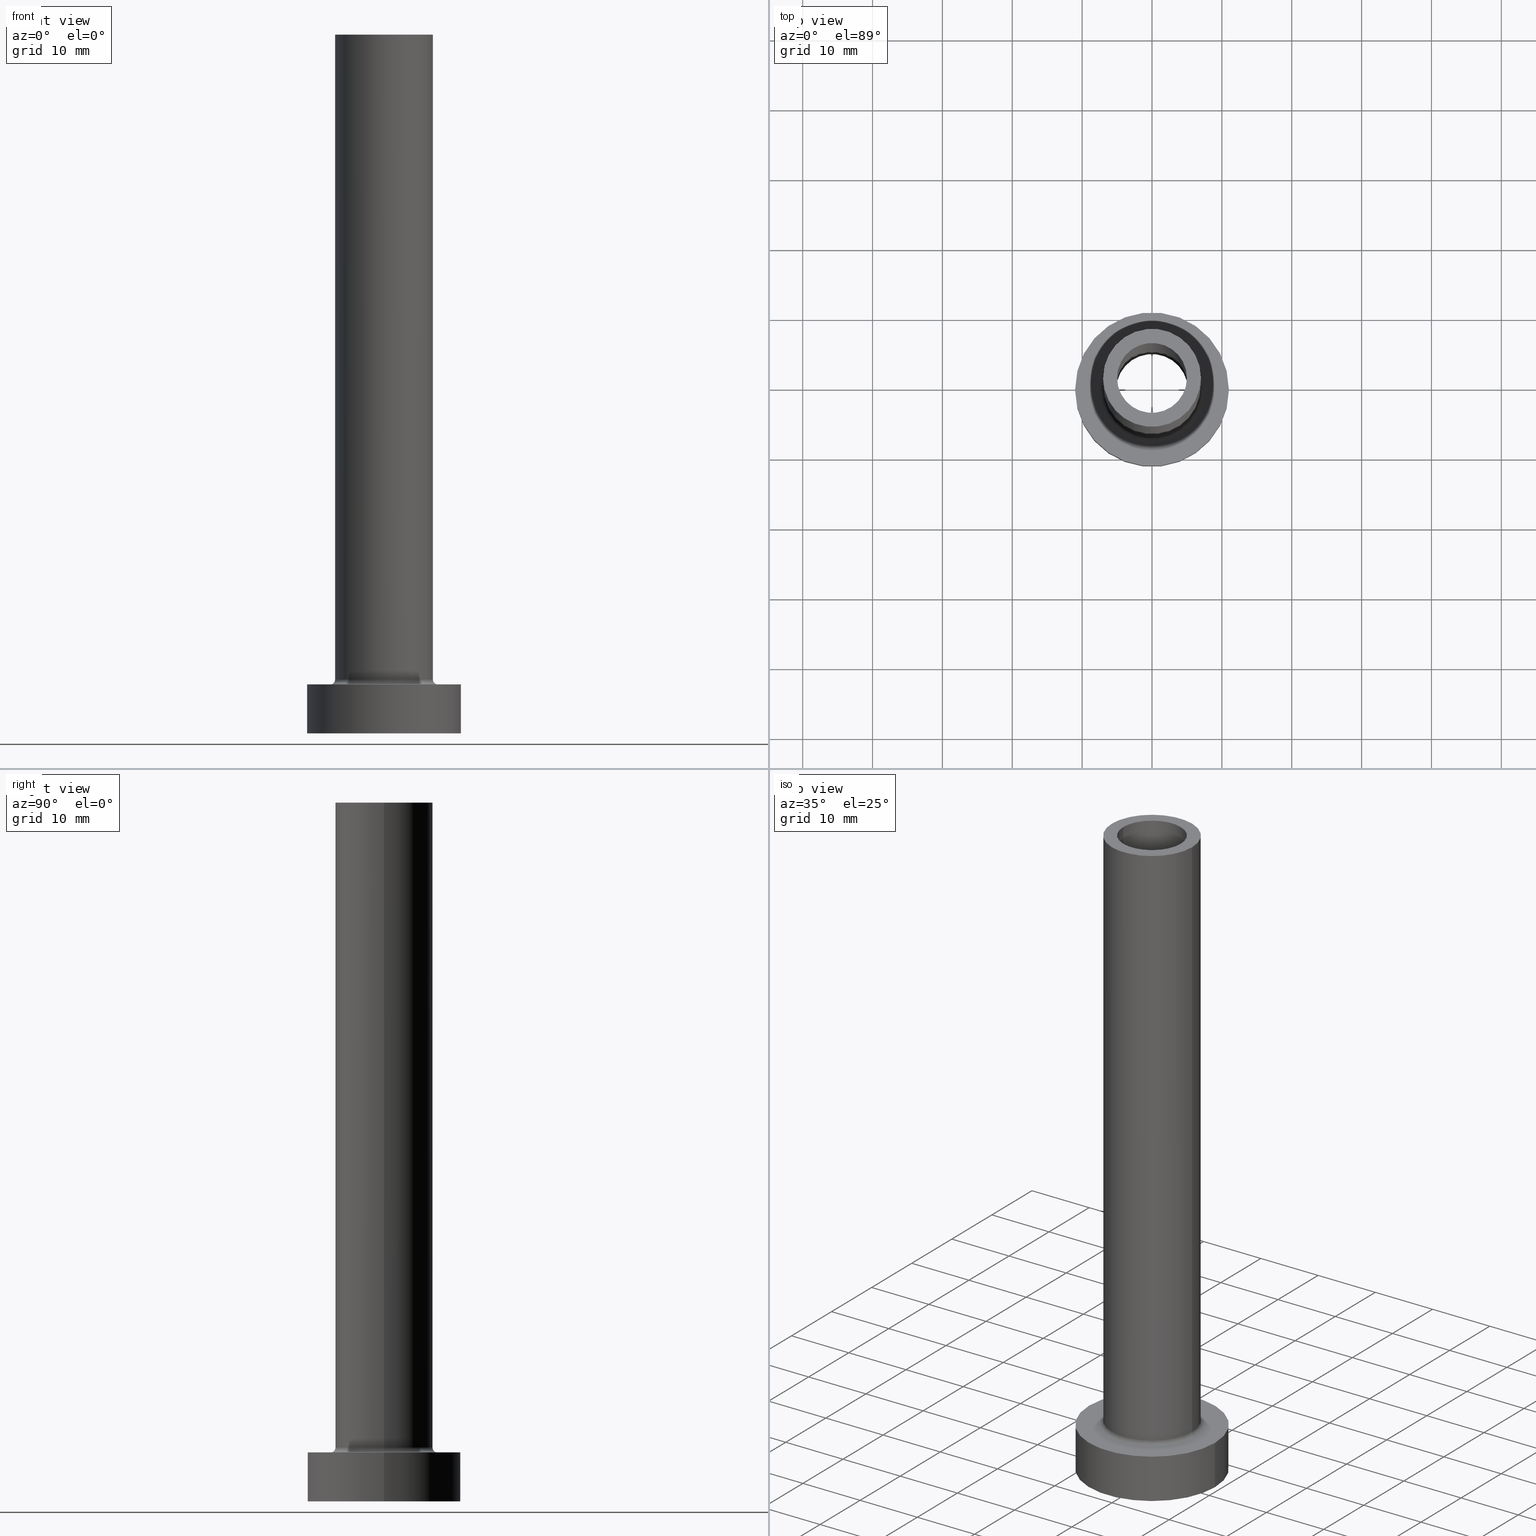
[diagram: canonical four-view strip — front | top / right | iso, engineering-drawing reading convention]
A machine part, canonical four-view strip (front | top / right | iso — engineering-drawing reading convention). The complete STEP part file that produces these views, byte-faithful:
ISO-10303-21;
HEADER;
FILE_DESCRIPTION (( 'STEP AP203' ),
    '1' );
FILE_NAME ('eeec.STEP',
    '2023-02-13T07:44:47',
    ( '' ),
    ( '' ),
    'SwSTEP 2.0',
    'SolidWorks 2019',
    '' );
FILE_SCHEMA (( 'CONFIG_CONTROL_DESIGN' ));
ENDSEC;

DATA;
#1 = DATE_AND_TIME ( #151, #394 ) ;
#2 = ORIENTED_EDGE ( 'NONE', *, *, #4, .T. ) ;
#3 = CARTESIAN_POINT ( 'NONE',  ( 0.000000000000000000, 0.000000000000000000, 0.000000000000000000 ) ) ;
#4 = EDGE_CURVE ( 'NONE', #427, #450, #444, .T. ) ;
#5 = EDGE_LOOP ( 'NONE', ( #326, #276, #83, #334 ) ) ;
#6 = AXIS2_PLACEMENT_3D ( 'NONE', #219, #72, #428 ) ;
#7 = ORIENTED_EDGE ( 'NONE', *, *, #222, .F. ) ;
#8 = CC_DESIGN_SECURITY_CLASSIFICATION ( #225, ( #303 ) ) ;
#9 = CARTESIAN_POINT ( 'NONE',  ( 0.000000000000000000, 0.000000000000000000, 100.0000000000000000 ) ) ;
#10 = EDGE_LOOP ( 'NONE', ( #153, #193, #87, #99 ) ) ;
#11 = ADVANCED_FACE ( 'NONE', ( #342 ), #408, .T. ) ;
#12 = DESIGN_CONTEXT ( 'detailed design', #199, 'design' ) ;
#13 = PERSON_AND_ORGANIZATION ( #282, #139 ) ;
#14 = CARTESIAN_POINT ( 'NONE',  ( 0.000000000000000000, 0.000000000000000000, 55.00000000000000711 ) ) ;
#15 = DIRECTION ( 'NONE',  ( 0.000000000000000000, 0.000000000000000000, -1.000000000000000000 ) ) ;
#16 = CLOSED_SHELL ( 'NONE', ( #365, #281, #347, #22, #173, #11, #186, #272, #252, #338, #306, #157, #341, #96 ) ) ;
#17 = AXIS2_PLACEMENT_3D ( 'NONE', #405, #203, #129 ) ;
#18 = APPROVAL_STATUS ( 'not_yet_approved' ) ;
#19 = DIRECTION ( 'NONE',  ( 1.000000000000000000, 0.000000000000000000, 0.000000000000000000 ) ) ;
#20 = FACE_OUTER_BOUND ( 'NONE', #74, .T. ) ;
#21 = DIRECTION ( 'NONE',  ( -0.000000000000000000, -0.000000000000000000, -1.000000000000000000 ) ) ;
#22 = ADVANCED_FACE ( 'NONE', ( #205 ), #346, .T. ) ;
#23 = DIRECTION ( 'NONE',  ( 0.000000000000000000, 0.000000000000000000, 1.000000000000000000 ) ) ;
#24 = CARTESIAN_POINT ( 'NONE',  ( 0.000000000000000000, 0.000000000000000000, 0.000000000000000000 ) ) ;
#25 = CARTESIAN_POINT ( 'NONE',  ( 7.000000000000000888, 8.572527594031472204E-16, 100.0000000000000000 ) ) ;
#26 = CARTESIAN_POINT ( 'NONE',  ( 0.000000000000000000, 0.000000000000000000, 55.00000000000000711 ) ) ;
#27 = AXIS2_PLACEMENT_3D ( 'NONE', #91, #236, #455 ) ;
#28 = DIRECTION ( 'NONE',  ( -1.000000000000000000, 0.000000000000000000, 0.000000000000000000 ) ) ;
#29 = EDGE_CURVE ( 'NONE', #427, #305, #161, .T. ) ;
#30 = CARTESIAN_POINT ( 'NONE',  ( 0.000000000000000000, 0.000000000000000000, 7.000000000000000000 ) ) ;
#31 = FACE_OUTER_BOUND ( 'NONE', #251, .T. ) ;
#32 = ORIENTED_EDGE ( 'NONE', *, *, #423, .F. ) ;
#33 = TOROIDAL_SURFACE ( 'NONE', #54, 7.700000000000001066, 0.6999999999999999556 ) ;
#34 = AXIS2_PLACEMENT_3D ( 'NONE', #73, #261, #398 ) ;
#35 = DIRECTION ( 'NONE',  ( 0.000000000000000000, 0.000000000000000000, 1.000000000000000000 ) ) ;
#36 = APPROVAL_STATUS ( 'not_yet_approved' ) ;
#37 = VERTEX_POINT ( 'NONE', #231 ) ;
#38 = DIRECTION ( 'NONE',  ( -0.000000000000000000, -0.000000000000000000, -1.000000000000000000 ) ) ;
#39 = AXIS2_PLACEMENT_3D ( 'NONE', #204, #345, #94 ) ;
#40 = ORIENTED_EDGE ( 'NONE', *, *, #61, .F. ) ;
#41 = APPLICATION_CONTEXT ( 'configuration controlled 3d designs of mechanical parts and assemblies' ) ;
#42 = VERTEX_POINT ( 'NONE', #58 ) ;
#43 = DIRECTION ( 'NONE',  ( -1.000000000000000000, 0.000000000000000000, 0.000000000000000000 ) ) ;
#44 = AXIS2_PLACEMENT_3D ( 'NONE', #9, #361, #43 ) ;
#45 = EDGE_LOOP ( 'NONE', ( #40, #422 ) ) ;
#46 = AXIS2_PLACEMENT_3D ( 'NONE', #176, #442, #19 ) ;
#47 = EDGE_CURVE ( 'NONE', #259, #362, #448, .T. ) ;
#48 = ORIENTED_EDGE ( 'NONE', *, *, #128, .F. ) ;
#49 = FACE_OUTER_BOUND ( 'NONE', #10, .T. ) ;
#50 = PERSON_AND_ORGANIZATION_ROLE ( 'classification_officer' ) ;
#51 = VERTEX_POINT ( 'NONE', #90 ) ;
#52 = CARTESIAN_POINT ( 'NONE',  ( 0.000000000000000000, 0.000000000000000000, 7.000000000000000000 ) ) ;
#53 = CARTESIAN_POINT ( 'NONE',  ( -5.150000000000001243, 0.000000000000000000, 0.000000000000000000 ) ) ;
#54 = AXIS2_PLACEMENT_3D ( 'NONE', #62, #23, #348 ) ;
#55 = APPROVAL ( #227, 'NEUR�EN�' ) ;
#56 = DIRECTION ( 'NONE',  ( 1.000000000000000000, 0.000000000000000000, 0.000000000000000000 ) ) ;
#57 = CYLINDRICAL_SURFACE ( 'NONE', #440, 5.150000000000001243 ) ;
#58 = CARTESIAN_POINT ( 'NONE',  ( -7.000000000000000888, 0.000000000000000000, 7.699999999999998401 ) ) ;
#59 = CARTESIAN_POINT ( 'NONE',  ( 11.00000000000000000, 1.347111479062088405E-15, 7.000000000000000000 ) ) ;
#60 = DIRECTION ( 'NONE',  ( -0.000000000000000000, -0.000000000000000000, -1.000000000000000000 ) ) ;
#61 = EDGE_CURVE ( 'NONE', #209, #375, #258, .T. ) ;
#62 = CARTESIAN_POINT ( 'NONE',  ( 0.000000000000000000, 0.000000000000000000, 7.699999999999998401 ) ) ;
#63 = CIRCLE ( 'NONE', #430, 5.150000000000001243 ) ;
#64 = APPROVAL_PERSON_ORGANIZATION ( #194, #55, #304 ) ;
#65 = ORIENTED_EDGE ( 'NONE', *, *, #312, .T. ) ;
#66 = LINE ( 'NONE', #25, #295 ) ;
#67 = VERTEX_POINT ( 'NONE', #319 ) ;
#68 = DIRECTION ( 'NONE',  ( 0.000000000000000000, 0.000000000000000000, 1.000000000000000000 ) ) ;
#69 = EDGE_CURVE ( 'NONE', #42, #460, #101, .T. ) ;
#70 =( NAMED_UNIT ( * ) PLANE_ANGLE_UNIT ( ) SI_UNIT ( $, .RADIAN. ) );
#71 = EDGE_LOOP ( 'NONE', ( #280, #328, #387, #48 ) ) ;
#72 = DIRECTION ( 'NONE',  ( 0.000000000000000000, -1.000000000000000000, 0.000000000000000000 ) ) ;
#73 = CARTESIAN_POINT ( 'NONE',  ( 0.000000000000000000, 0.000000000000000000, 0.000000000000000000 ) ) ;
#74 = EDGE_LOOP ( 'NONE', ( #80, #217, #352, #253 ) ) ;
#75 = CARTESIAN_POINT ( 'NONE',  ( 0.000000000000000000, 0.000000000000000000, 0.000000000000000000 ) ) ;
#76 = ORIENTED_EDGE ( 'NONE', *, *, #318, .F. ) ;
#77 = CC_DESIGN_PERSON_AND_ORGANIZATION_ASSIGNMENT ( #266, #223, ( #303 ) ) ;
#78 = VECTOR ( 'NONE', #289, 1000.000000000000000 ) ;
#79 = ORIENTED_EDGE ( 'NONE', *, *, #246, .T. ) ;
#80 = ORIENTED_EDGE ( 'NONE', *, *, #445, .F. ) ;
#81 = PRODUCT ( 'eeec', 'eeec', '', ( #355 ) ) ;
#82 = AXIS2_PLACEMENT_3D ( 'NONE', #350, #171, #202 ) ;
#83 = ORIENTED_EDGE ( 'NONE', *, *, #226, .T. ) ;
#84 = AXIS2_PLACEMENT_3D ( 'NONE', #409, #88, #232 ) ;
#85 = DIRECTION ( 'NONE',  ( 1.000000000000000000, 0.000000000000000000, -0.000000000000000000 ) ) ;
#86 = CYLINDRICAL_SURFACE ( 'NONE', #117, 5.000000000000000000 ) ;
#87 = ORIENTED_EDGE ( 'NONE', *, *, #135, .F. ) ;
#88 = DIRECTION ( 'NONE',  ( 0.000000000000000000, 0.000000000000000000, 1.000000000000000000 ) ) ;
#89 = CC_DESIGN_PERSON_AND_ORGANIZATION_ASSIGNMENT ( #13, #363, ( #303 ) ) ;
#90 = CARTESIAN_POINT ( 'NONE',  ( 5.000000000000000000, 6.123233995736765296E-16, 55.00000000000000711 ) ) ;
#91 = CARTESIAN_POINT ( 'NONE',  ( 0.000000000000000000, 0.000000000000000000, 100.0000000000000000 ) ) ;
#92 = PLANE ( 'NONE',  #244 ) ;
#93 = DIRECTION ( 'NONE',  ( -1.000000000000000000, 0.000000000000000000, 0.000000000000000000 ) ) ;
#94 = DIRECTION ( 'NONE',  ( 1.000000000000000000, 0.000000000000000000, 0.000000000000000000 ) ) ;
#95 = DIRECTION ( 'NONE',  ( 0.000000000000000000, 0.000000000000000000, 1.000000000000000000 ) ) ;
#96 = ADVANCED_FACE ( 'NONE', ( #414 ), #377, .F. ) ;
#97 = DIRECTION ( 'NONE',  ( -1.000000000000000000, 0.000000000000000000, 0.000000000000000000 ) ) ;
#98 = CARTESIAN_POINT ( 'NONE',  ( 0.000000000000000000, 0.000000000000000000, 69.56639969244290000 ) ) ;
#99 = ORIENTED_EDGE ( 'NONE', *, *, #237, .F. ) ;
#100 = AXIS2_PLACEMENT_3D ( 'NONE', #170, #278, #314 ) ;
#101 = CIRCLE ( 'NONE', #321, 7.000000000000000888 ) ;
#102 = CYLINDRICAL_SURFACE ( 'NONE', #133, 11.00000000000000000 ) ;
#103 = DIRECTION ( 'NONE',  ( -0.000000000000000000, -0.000000000000000000, -1.000000000000000000 ) ) ;
#104 = ORIENTED_EDGE ( 'NONE', *, *, #128, .T. ) ;
#105 = CARTESIAN_POINT ( 'NONE',  ( 5.150000000000001243, 6.306931015608869596E-16, 69.56639969244290000 ) ) ;
#106 = ORIENTED_EDGE ( 'NONE', *, *, #147, .F. ) ;
#107 = CIRCLE ( 'NONE', #180, 0.7000000000000000666 ) ;
#108 = DATE_AND_TIME ( #388, #403 ) ;
#109 = PERSON_AND_ORGANIZATION_ROLE ( 'design_owner' ) ;
#110 = ORIENTED_EDGE ( 'NONE', *, *, #29, .F. ) ;
#111 = DIRECTION ( 'NONE',  ( 1.000000000000000000, 0.000000000000000000, -0.000000000000000000 ) ) ;
#112 = EDGE_LOOP ( 'NONE', ( #333, #104 ) ) ;
#113 = AXIS2_PLACEMENT_3D ( 'NONE', #177, #254, #296 ) ;
#114 = APPROVAL_DATE_TIME ( #1, #160 ) ;
#115 = AXIS2_PLACEMENT_3D ( 'NONE', #175, #241, #28 ) ;
#116 = AXIS2_PLACEMENT_3D ( 'NONE', #381, #208, #56 ) ;
#117 = AXIS2_PLACEMENT_3D ( 'NONE', #229, #15, #198 ) ;
#118 = EDGE_LOOP ( 'NONE', ( #435, #301 ) ) ;
#119 = VERTEX_POINT ( 'NONE', #201 ) ;
#120 = EDGE_CURVE ( 'NONE', #362, #259, #417, .T. ) ;
#121 = PLANE ( 'NONE',  #285 ) ;
#122 = UNCERTAINTY_MEASURE_WITH_UNIT (LENGTH_MEASURE( 1.000000000000000082E-05 ), #182, 'distance_accuracy_value', 'NONE');
#123 = VECTOR ( 'NONE', #211, 1000.000000000000000 ) ;
#124 = ORIENTED_EDGE ( 'NONE', *, *, #47, .T. ) ;
#125 = DIRECTION ( 'NONE',  ( 1.224646799147353207E-16, 1.000000000000000000, -0.000000000000000000 ) ) ;
#126 = APPROVAL_DATE_TIME ( #310, #454 ) ;
#127 = DIRECTION ( 'NONE',  ( -0.000000000000000000, -0.000000000000000000, -1.000000000000000000 ) ) ;
#128 = EDGE_CURVE ( 'NONE', #220, #37, #432, .T. ) ;
#129 = DIRECTION ( 'NONE',  ( 1.000000000000000000, 0.000000000000000000, -0.000000000000000000 ) ) ;
#130 = DIRECTION ( 'NONE',  ( -0.000000000000000000, -0.000000000000000000, -1.000000000000000000 ) ) ;
#131 = FACE_OUTER_BOUND ( 'NONE', #337, .T. ) ;
#132 = DIRECTION ( 'NONE',  ( -0.000000000000000000, -0.000000000000000000, -1.000000000000000000 ) ) ;
#133 = AXIS2_PLACEMENT_3D ( 'NONE', #142, #38, #357 ) ;
#134 = DIRECTION ( 'NONE',  ( 0.000000000000000000, 0.000000000000000000, -1.000000000000000000 ) ) ;
#135 = EDGE_CURVE ( 'NONE', #37, #220, #200, .T. ) ;
#136 = CARTESIAN_POINT ( 'NONE',  ( 0.000000000000000000, 0.000000000000000000, 100.0000000000000000 ) ) ;
#137 = DIRECTION ( 'NONE',  ( 0.000000000000000000, 0.000000000000000000, 1.000000000000000000 ) ) ;
#138 = DIRECTION ( 'NONE',  ( -0.000000000000000000, -0.000000000000000000, -1.000000000000000000 ) ) ;
#139 = ORGANIZATION ( 'NEUR�EN�', 'NEUR�EN�', '' ) ;
#140 = DIRECTION ( 'NONE',  ( 1.000000000000000000, 0.000000000000000000, 0.000000000000000000 ) ) ;
#141 = CC_DESIGN_PERSON_AND_ORGANIZATION_ASSIGNMENT ( #299, #395, ( #210 ) ) ;
#142 = CARTESIAN_POINT ( 'NONE',  ( 0.000000000000000000, 0.000000000000000000, 7.000000000000000000 ) ) ;
#143 = ORIENTED_EDGE ( 'NONE', *, *, #226, .F. ) ;
#144 = CARTESIAN_POINT ( 'NONE',  ( -7.000000000000000888, 0.000000000000000000, 100.0000000000000000 ) ) ;
#145 = ORIENTED_EDGE ( 'NONE', *, *, #445, .T. ) ;
#146 = CIRCLE ( 'NONE', #6, 0.7000000000000000666 ) ;
#147 = EDGE_CURVE ( 'NONE', #51, #119, #294, .T. ) ;
#148 = CARTESIAN_POINT ( 'NONE',  ( 0.000000000000000000, 0.000000000000000000, 7.000000000000000000 ) ) ;
#149 = CARTESIAN_POINT ( 'NONE',  ( 5.000000000000000000, 6.123233995736765296E-16, 100.0000000000000000 ) ) ;
#150 = ADVANCED_BREP_SHAPE_REPRESENTATION ( 'eeec', ( #265, #34 ), #380 ) ;
#151 = CALENDAR_DATE ( 2023, 13, 2 ) ;
#152 = DIRECTION ( 'NONE',  ( 0.000000000000000000, 0.000000000000000000, 1.000000000000000000 ) ) ;
#153 = ORIENTED_EDGE ( 'NONE', *, *, #69, .F. ) ;
#154 = DATE_TIME_ROLE ( 'creation_date' ) ;
#155 = LOCAL_TIME ( 8, 44, 47.00000000000000000, #166 ) ;
#156 = ORIENTED_EDGE ( 'NONE', *, *, #297, .F. ) ;
#157 = ADVANCED_FACE ( 'NONE', ( #452 ), #416, .F. ) ;
#158 = DIRECTION ( 'NONE',  ( 0.000000000000000000, 0.000000000000000000, 1.000000000000000000 ) ) ;
#159 = DATE_AND_TIME ( #224, #353 ) ;
#160 = APPROVAL ( #36, 'NEUR�EN�' ) ;
#161 = CIRCLE ( 'NONE', #46, 11.00000000000000000 ) ;
#162 = CIRCLE ( 'NONE', #418, 7.000000000000000888 ) ;
#163 = EDGE_LOOP ( 'NONE', ( #307, #221 ) ) ;
#164 = TOROIDAL_SURFACE ( 'NONE', #286, 7.700000000000001066, 0.6999999999999999556 ) ;
#165 = CARTESIAN_POINT ( 'NONE',  ( 7.000000000000000888, 8.572527594031472204E-16, 100.0000000000000000 ) ) ;
#166 = COORDINATED_UNIVERSAL_TIME_OFFSET ( 1, 0, .AHEAD. ) ;
#167 = DIRECTION ( 'NONE',  ( 0.000000000000000000, 0.000000000000000000, 1.000000000000000000 ) ) ;
#168 = CARTESIAN_POINT ( 'NONE',  ( 0.000000000000000000, 0.000000000000000000, 55.00000000000000711 ) ) ;
#169 = CARTESIAN_POINT ( 'NONE',  ( 0.000000000000000000, 0.000000000000000000, 7.699999999999998401 ) ) ;
#170 = CARTESIAN_POINT ( 'NONE',  ( 0.000000000000000000, 0.000000000000000000, 100.0000000000000000 ) ) ;
#171 = DIRECTION ( 'NONE',  ( 0.000000000000000000, 0.000000000000000000, 1.000000000000000000 ) ) ;
#172 = LOCAL_TIME ( 8, 44, 47.00000000000000000, #343 ) ;
#173 = ADVANCED_FACE ( 'NONE', ( #31 ), #102, .T. ) ;
#174 = DIRECTION ( 'NONE',  ( 0.000000000000000000, 0.000000000000000000, -1.000000000000000000 ) ) ;
#175 = CARTESIAN_POINT ( 'NONE',  ( 0.000000000000000000, 0.000000000000000000, 100.0000000000000000 ) ) ;
#176 = CARTESIAN_POINT ( 'NONE',  ( 0.000000000000000000, 0.000000000000000000, 7.000000000000000000 ) ) ;
#177 = CARTESIAN_POINT ( 'NONE',  ( 0.000000000000000000, 0.000000000000000000, 7.000000000000000000 ) ) ;
#178 = EDGE_CURVE ( 'NONE', #375, #259, #214, .T. ) ;
#179 = AXIS2_PLACEMENT_3D ( 'NONE', #75, #453, #140 ) ;
#180 = AXIS2_PLACEMENT_3D ( 'NONE', #268, #125, #439 ) ;
#181 = CIRCLE ( 'NONE', #84, 5.000000000000000000 ) ;
#182 =( LENGTH_UNIT ( ) NAMED_UNIT ( * ) SI_UNIT ( .MILLI., .METRE. ) );
#183 = ORIENTED_EDGE ( 'NONE', *, *, #397, .T. ) ;
#184 = DIRECTION ( 'NONE',  ( 1.000000000000000000, 0.000000000000000000, 0.000000000000000000 ) ) ;
#185 = PERSON_AND_ORGANIZATION ( #282, #139 ) ;
#186 = ADVANCED_FACE ( 'NONE', ( #249, #216 ), #389, .T. ) ;
#187 = ORIENTED_EDGE ( 'NONE', *, *, #413, .T. ) ;
#188 = FACE_BOUND ( 'NONE', #118, .T. ) ;
#189 = CC_DESIGN_DATE_AND_TIME_ASSIGNMENT ( #108, #154, ( #210 ) ) ;
#190 = ORIENTED_EDGE ( 'NONE', *, *, #312, .F. ) ;
#191 = VECTOR ( 'NONE', #458, 1000.000000000000000 ) ;
#192 = APPROVAL_DATE_TIME ( #400, #55 ) ;
#193 = ORIENTED_EDGE ( 'NONE', *, *, #356, .T. ) ;
#194 = PERSON_AND_ORGANIZATION ( #282, #139 ) ;
#195 = CARTESIAN_POINT ( 'NONE',  ( 0.000000000000000000, 0.000000000000000000, 7.699999999999998401 ) ) ;
#196 = EDGE_CURVE ( 'NONE', #305, #427, #402, .T. ) ;
#197 = COORDINATED_UNIVERSAL_TIME_OFFSET ( 1, 0, .AHEAD. ) ;
#198 = DIRECTION ( 'NONE',  ( -1.000000000000000000, 0.000000000000000000, 0.000000000000000000 ) ) ;
#199 = APPLICATION_CONTEXT ( 'configuration controlled 3d designs of mechanical parts and assemblies' ) ;
#200 = CIRCLE ( 'NONE', #116, 7.700000000000001066 ) ;
#201 = CARTESIAN_POINT ( 'NONE',  ( -5.000000000000000000, 0.000000000000000000, 55.00000000000000711 ) ) ;
#202 = DIRECTION ( 'NONE',  ( 1.000000000000000000, 0.000000000000000000, 0.000000000000000000 ) ) ;
#203 = DIRECTION ( 'NONE',  ( 0.000000000000000000, 0.000000000000000000, 1.000000000000000000 ) ) ;
#204 = CARTESIAN_POINT ( 'NONE',  ( 0.000000000000000000, 0.000000000000000000, 7.699999999999998401 ) ) ;
#205 = FACE_OUTER_BOUND ( 'NONE', #267, .T. ) ;
#206 = EDGE_CURVE ( 'NONE', #450, #67, #372, .T. ) ;
#207 = FACE_OUTER_BOUND ( 'NONE', #71, .T. ) ;
#208 = DIRECTION ( 'NONE',  ( -0.000000000000000000, -0.000000000000000000, -1.000000000000000000 ) ) ;
#209 = VERTEX_POINT ( 'NONE', #393 ) ;
#210 = PRODUCT_DEFINITION ( 'NEZN�M�', '', #303, #12 ) ;
#211 = DIRECTION ( 'NONE',  ( -0.000000000000000000, -0.000000000000000000, -1.000000000000000000 ) ) ;
#212 = DIRECTION ( 'NONE',  ( -0.000000000000000000, -0.000000000000000000, -1.000000000000000000 ) ) ;
#213 = ORIENTED_EDGE ( 'NONE', *, *, #423, .T. ) ;
#214 = LINE ( 'NONE', #105, #215 ) ;
#215 = VECTOR ( 'NONE', #385, 1000.000000000000000 ) ;
#216 = FACE_OUTER_BOUND ( 'NONE', #163, .T. ) ;
#217 = ORIENTED_EDGE ( 'NONE', *, *, #397, .F. ) ;
#218 = PERSON_AND_ORGANIZATION ( #282, #139 ) ;
#219 = CARTESIAN_POINT ( 'NONE',  ( 7.700000000000001066, 0.000000000000000000, 7.699999999999998401 ) ) ;
#220 = VERTEX_POINT ( 'NONE', #325 ) ;
#221 = ORIENTED_EDGE ( 'NONE', *, *, #196, .T. ) ;
#222 = EDGE_CURVE ( 'NONE', #436, #42, #320, .T. ) ;
#223 = PERSON_AND_ORGANIZATION_ROLE ( 'creator' ) ;
#224 = CALENDAR_DATE ( 2023, 13, 2 ) ;
#225 = SECURITY_CLASSIFICATION ( '', '', #270 ) ;
#226 = EDGE_CURVE ( 'NONE', #209, #362, #292, .T. ) ;
#227 = APPROVAL_STATUS ( 'not_yet_approved' ) ;
#228 = EDGE_LOOP ( 'NONE', ( #382, #396 ) ) ;
#229 = CARTESIAN_POINT ( 'NONE',  ( 0.000000000000000000, 0.000000000000000000, 100.0000000000000000 ) ) ;
#230 = PERSON_AND_ORGANIZATION ( #282, #139 ) ;
#231 = CARTESIAN_POINT ( 'NONE',  ( 7.700000000000001066, 0.000000000000000000, 6.999999999999999112 ) ) ;
#232 = DIRECTION ( 'NONE',  ( 1.000000000000000000, 0.000000000000000000, 0.000000000000000000 ) ) ;
#233 = AXIS2_PLACEMENT_3D ( 'NONE', #52, #21, #235 ) ;
#234 = APPROVAL_PERSON_ORGANIZATION ( #185, #160, #327 ) ;
#235 = DIRECTION ( 'NONE',  ( 1.000000000000000000, 0.000000000000000000, 0.000000000000000000 ) ) ;
#236 = DIRECTION ( 'NONE',  ( 0.000000000000000000, 0.000000000000000000, 1.000000000000000000 ) ) ;
#237 = EDGE_CURVE ( 'NONE', #460, #37, #146, .T. ) ;
#238 = DIRECTION ( 'NONE',  ( -1.000000000000000000, 0.000000000000000000, 0.000000000000000000 ) ) ;
#239 = FACE_OUTER_BOUND ( 'NONE', #283, .T. ) ;
#240 = CARTESIAN_POINT ( 'NONE',  ( 0.000000000000000000, 0.000000000000000000, 69.56639969244290000 ) ) ;
#241 = DIRECTION ( 'NONE',  ( 0.000000000000000000, 0.000000000000000000, -1.000000000000000000 ) ) ;
#242 = FACE_OUTER_BOUND ( 'NONE', #290, .T. ) ;
#243 = DIRECTION ( 'NONE',  ( 0.000000000000000000, 0.000000000000000000, -1.000000000000000000 ) ) ;
#244 = AXIS2_PLACEMENT_3D ( 'NONE', #3, #152, #317 ) ;
#245 = AXIS2_PLACEMENT_3D ( 'NONE', #269, #95, #279 ) ;
#246 = EDGE_CURVE ( 'NONE', #67, #450, #274, .T. ) ;
#247 = LINE ( 'NONE', #383, #78 ) ;
#248 = COORDINATED_UNIVERSAL_TIME_OFFSET ( 1, 0, .AHEAD. ) ;
#249 = FACE_BOUND ( 'NONE', #112, .T. ) ;
#250 = CARTESIAN_POINT ( 'NONE',  ( -11.00000000000000000, 0.000000000000000000, 7.000000000000000000 ) ) ;
#251 = EDGE_LOOP ( 'NONE', ( #313, #187, #79, #461 ) ) ;
#252 = ADVANCED_FACE ( 'NONE', ( #20 ), #364, .T. ) ;
#253 = ORIENTED_EDGE ( 'NONE', *, *, #69, .T. ) ;
#254 = DIRECTION ( 'NONE',  ( 0.000000000000000000, 0.000000000000000000, 1.000000000000000000 ) ) ;
#255 = ORIENTED_EDGE ( 'NONE', *, *, #206, .F. ) ;
#256 = VERTEX_POINT ( 'NONE', #149 ) ;
#257 = EDGE_CURVE ( 'NONE', #375, #209, #63, .T. ) ;
#258 = CIRCLE ( 'NONE', #245, 5.150000000000001243 ) ;
#259 = VERTEX_POINT ( 'NONE', #429 ) ;
#260 = CALENDAR_DATE ( 2023, 13, 2 ) ;
#261 = DIRECTION ( 'NONE',  ( 0.000000000000000000, 0.000000000000000000, 1.000000000000000000 ) ) ;
#262 = PRODUCT_DEFINITION_SHAPE ( 'NONE', 'NONE',  #210 ) ;
#263 = ORIENTED_EDGE ( 'NONE', *, *, #61, .T. ) ;
#264 = DIRECTION ( 'NONE',  ( 0.000000000000000000, 0.000000000000000000, 1.000000000000000000 ) ) ;
#265 = MANIFOLD_SOLID_BREP ( 'Odebrat vysunut�m4', #16 ) ;
#266 = PERSON_AND_ORGANIZATION ( #282, #139 ) ;
#267 = EDGE_LOOP ( 'NONE', ( #401, #145, #351, #7 ) ) ;
#268 = CARTESIAN_POINT ( 'NONE',  ( -7.700000000000001066, 9.429780353434621002E-16, 7.699999999999998401 ) ) ;
#269 = CARTESIAN_POINT ( 'NONE',  ( 0.000000000000000000, 0.000000000000000000, 55.00000000000000711 ) ) ;
#270 = SECURITY_CLASSIFICATION_LEVEL ( 'unclassified' ) ;
#271 = ORIENTED_EDGE ( 'NONE', *, *, #206, .T. ) ;
#272 = ADVANCED_FACE ( 'NONE', ( #188, #410 ), #92, .F. ) ;
#273 = DIRECTION ( 'NONE',  ( 1.000000000000000000, 0.000000000000000000, 0.000000000000000000 ) ) ;
#274 = CIRCLE ( 'NONE', #179, 11.00000000000000000 ) ;
#275 = APPROVAL_PERSON_ORGANIZATION ( #230, #454, #441 ) ;
#276 = ORIENTED_EDGE ( 'NONE', *, *, #257, .T. ) ;
#277 = FACE_BOUND ( 'NONE', #390, .T. ) ;
#278 = DIRECTION ( 'NONE',  ( 0.000000000000000000, 0.000000000000000000, 1.000000000000000000 ) ) ;
#279 = DIRECTION ( 'NONE',  ( 1.000000000000000000, 0.000000000000000000, 0.000000000000000000 ) ) ;
#280 = ORIENTED_EDGE ( 'NONE', *, *, #356, .F. ) ;
#281 = ADVANCED_FACE ( 'NONE', ( #242 ), #57, .F. ) ;
#282 = PERSON ( 'NEUR�EN�', 'NEUR�EN�', 'NEUR�EN�', ('NEUR�EN�'), ('NEUR�EN�'), ('NEUR�EN�') ) ;
#283 = EDGE_LOOP ( 'NONE', ( #183, #392 ) ) ;
#284 = CARTESIAN_POINT ( 'NONE',  ( 11.00000000000000000, 1.347111479062088405E-15, 7.000000000000000000 ) ) ;
#285 = AXIS2_PLACEMENT_3D ( 'NONE', #14, #264, #85 ) ;
#286 = AXIS2_PLACEMENT_3D ( 'NONE', #195, #158, #308 ) ;
#287 = CARTESIAN_POINT ( 'NONE',  ( -7.000000000000000888, 0.000000000000000000, 100.0000000000000000 ) ) ;
#288 = ORIENTED_EDGE ( 'NONE', *, *, #391, .T. ) ;
#289 = DIRECTION ( 'NONE',  ( 0.000000000000000000, 0.000000000000000000, -1.000000000000000000 ) ) ;
#290 = EDGE_LOOP ( 'NONE', ( #263, #324, #124, #143 ) ) ;
#291 = EDGE_CURVE ( 'NONE', #460, #42, #379, .T. ) ;
#292 = LINE ( 'NONE', #424, #191 ) ;
#293 = EDGE_LOOP ( 'NONE', ( #156, #288, #213, #106 ) ) ;
#294 = CIRCLE ( 'NONE', #82, 5.000000000000000000 ) ;
#295 = VECTOR ( 'NONE', #212, 1000.000000000000000 ) ;
#296 = DIRECTION ( 'NONE',  ( 1.000000000000000000, 0.000000000000000000, 0.000000000000000000 ) ) ;
#297 = EDGE_CURVE ( 'NONE', #256, #51, #378, .T. ) ;
#298 = FACE_BOUND ( 'NONE', #228, .T. ) ;
#299 = PERSON_AND_ORGANIZATION ( #282, #139 ) ;
#300 = DIRECTION ( 'NONE',  ( 0.000000000000000000, 0.000000000000000000, 1.000000000000000000 ) ) ;
#301 = ORIENTED_EDGE ( 'NONE', *, *, #47, .F. ) ;
#302 = CIRCLE ( 'NONE', #360, 5.000000000000000000 ) ;
#303 = PRODUCT_DEFINITION_FORMATION_WITH_SPECIFIED_SOURCE ( 'LIBOVOLN�', '', #81, .NOT_KNOWN. ) ;
#304 = APPROVAL_ROLE ( '' ) ;
#305 = VERTEX_POINT ( 'NONE', #59 ) ;
#306 = ADVANCED_FACE ( 'NONE', ( #207 ), #33, .F. ) ;
#307 = ORIENTED_EDGE ( 'NONE', *, *, #29, .T. ) ;
#308 = DIRECTION ( 'NONE',  ( 1.000000000000000000, 0.000000000000000000, 0.000000000000000000 ) ) ;
#309 = VECTOR ( 'NONE', #174, 1000.000000000000000 ) ;
#310 = DATE_AND_TIME ( #339, #155 ) ;
#311 = DIRECTION ( 'NONE',  ( 1.000000000000000000, 0.000000000000000000, 0.000000000000000000 ) ) ;
#312 = EDGE_CURVE ( 'NONE', #420, #256, #447, .T. ) ;
#313 = ORIENTED_EDGE ( 'NONE', *, *, #196, .F. ) ;
#314 = DIRECTION ( 'NONE',  ( 1.000000000000000000, 0.000000000000000000, 0.000000000000000000 ) ) ;
#315 = DIRECTION ( 'NONE',  ( 1.000000000000000000, 0.000000000000000000, 0.000000000000000000 ) ) ;
#316 =( NAMED_UNIT ( * ) SI_UNIT ( $, .STERADIAN. ) SOLID_ANGLE_UNIT ( ) );
#317 = DIRECTION ( 'NONE',  ( 1.000000000000000000, 0.000000000000000000, -0.000000000000000000 ) ) ;
#318 = EDGE_CURVE ( 'NONE', #119, #51, #302, .T. ) ;
#319 = CARTESIAN_POINT ( 'NONE',  ( 11.00000000000000000, 1.347111479062088405E-15, 0.000000000000000000 ) ) ;
#320 = LINE ( 'NONE', #144, #123 ) ;
#321 = AXIS2_PLACEMENT_3D ( 'NONE', #169, #167, #406 ) ;
#322 = ORIENTED_EDGE ( 'NONE', *, *, #246, .F. ) ;
#323 = DIRECTION ( 'NONE',  ( -1.000000000000000000, 0.000000000000000000, 0.000000000000000000 ) ) ;
#324 = ORIENTED_EDGE ( 'NONE', *, *, #178, .T. ) ;
#325 = CARTESIAN_POINT ( 'NONE',  ( -7.700000000000001066, 9.429780353434621002E-16, 6.999999999999999112 ) ) ;
#326 = ORIENTED_EDGE ( 'NONE', *, *, #178, .F. ) ;
#327 = APPROVAL_ROLE ( '' ) ;
#328 = ORIENTED_EDGE ( 'NONE', *, *, #291, .F. ) ;
#329 = AXIS2_PLACEMENT_3D ( 'NONE', #136, #138, #238 ) ;
#330 = EDGE_CURVE ( 'NONE', #371, #436, #162, .T. ) ;
#331 = COORDINATED_UNIVERSAL_TIME_OFFSET ( 1, 0, .AHEAD. ) ;
#332 = APPLICATION_PROTOCOL_DEFINITION ( 'international standard', 'config_control_design', 1994, #41 ) ;
#333 = ORIENTED_EDGE ( 'NONE', *, *, #135, .T. ) ;
#334 = ORIENTED_EDGE ( 'NONE', *, *, #120, .T. ) ;
#335 = AXIS2_PLACEMENT_3D ( 'NONE', #30, #130, #93 ) ;
#336 = SHAPE_DEFINITION_REPRESENTATION ( #262, #150 ) ;
#337 = EDGE_LOOP ( 'NONE', ( #65, #431, #76, #32 ) ) ;
#338 = ADVANCED_FACE ( 'NONE', ( #277, #239 ), #368, .T. ) ;
#339 = CALENDAR_DATE ( 2023, 13, 2 ) ;
#340 = DATE_TIME_ROLE ( 'classification_date' ) ;
#341 = ADVANCED_FACE ( 'NONE', ( #298, #437 ), #121, .F. ) ;
#342 = FACE_OUTER_BOUND ( 'NONE', #367, .T. ) ;
#343 = COORDINATED_UNIVERSAL_TIME_OFFSET ( 1, 0, .AHEAD. ) ;
#344 = CARTESIAN_POINT ( 'NONE',  ( 0.000000000000000000, 0.000000000000000000, 0.000000000000000000 ) ) ;
#345 = DIRECTION ( 'NONE',  ( 0.000000000000000000, 0.000000000000000000, 1.000000000000000000 ) ) ;
#346 = CYLINDRICAL_SURFACE ( 'NONE', #329, 7.000000000000000888 ) ;
#347 = ADVANCED_FACE ( 'NONE', ( #49 ), #164, .F. ) ;
#348 = DIRECTION ( 'NONE',  ( 1.000000000000000000, 0.000000000000000000, 0.000000000000000000 ) ) ;
#349 = AXIS2_PLACEMENT_3D ( 'NONE', #354, #35, #184 ) ;
#350 = CARTESIAN_POINT ( 'NONE',  ( 0.000000000000000000, 0.000000000000000000, 55.00000000000000711 ) ) ;
#351 = ORIENTED_EDGE ( 'NONE', *, *, #291, .T. ) ;
#352 = ORIENTED_EDGE ( 'NONE', *, *, #222, .T. ) ;
#353 = LOCAL_TIME ( 8, 44, 47.00000000000000000, #197 ) ;
#354 = CARTESIAN_POINT ( 'NONE',  ( 0.000000000000000000, 0.000000000000000000, 0.000000000000000000 ) ) ;
#355 = MECHANICAL_CONTEXT ( 'NONE', #41, 'mechanical' ) ;
#356 = EDGE_CURVE ( 'NONE', #42, #220, #107, .T. ) ;
#357 = DIRECTION ( 'NONE',  ( -1.000000000000000000, 0.000000000000000000, 0.000000000000000000 ) ) ;
#358 = ORIENTED_EDGE ( 'NONE', *, *, #391, .F. ) ;
#359 = VECTOR ( 'NONE', #132, 1000.000000000000000 ) ;
#360 = AXIS2_PLACEMENT_3D ( 'NONE', #26, #412, #446 ) ;
#361 = DIRECTION ( 'NONE',  ( -0.000000000000000000, -0.000000000000000000, -1.000000000000000000 ) ) ;
#362 = VERTEX_POINT ( 'NONE', #53 ) ;
#363 = PERSON_AND_ORGANIZATION_ROLE ( 'design_supplier' ) ;
#364 = CYLINDRICAL_SURFACE ( 'NONE', #44, 7.000000000000000888 ) ;
#365 = ADVANCED_FACE ( 'NONE', ( #131 ), #86, .F. ) ;
#366 = CC_DESIGN_APPROVAL ( #160, ( #210 ) ) ;
#367 = EDGE_LOOP ( 'NONE', ( #438, #110, #2, #271 ) ) ;
#368 = PLANE ( 'NONE',  #17 ) ;
#369 = PERSON_AND_ORGANIZATION ( #282, #139 ) ;
#370 = PRODUCT_RELATED_PRODUCT_CATEGORY ( 'detail', '', ( #81 ) ) ;
#371 = VERTEX_POINT ( 'NONE', #165 ) ;
#372 = CIRCLE ( 'NONE', #349, 11.00000000000000000 ) ;
#373 = AXIS2_PLACEMENT_3D ( 'NONE', #24, #60, #311 ) ;
#374 = AXIS2_PLACEMENT_3D ( 'NONE', #98, #243, #323 ) ;
#375 = VERTEX_POINT ( 'NONE', #407 ) ;
#376 = CARTESIAN_POINT ( 'NONE',  ( 5.000000000000000000, 6.123233995736765296E-16, 100.0000000000000000 ) ) ;
#377 = CYLINDRICAL_SURFACE ( 'NONE', #115, 5.000000000000000000 ) ;
#378 = LINE ( 'NONE', #376, #309 ) ;
#379 = CIRCLE ( 'NONE', #39, 7.000000000000000888 ) ;
#380 =( GEOMETRIC_REPRESENTATION_CONTEXT ( 3 ) GLOBAL_UNCERTAINTY_ASSIGNED_CONTEXT ( ( #122 ) ) GLOBAL_UNIT_ASSIGNED_CONTEXT ( ( #182, #70, #316 ) ) REPRESENTATION_CONTEXT ( 'NONE', 'WORKASPACE' ) );
#381 = CARTESIAN_POINT ( 'NONE',  ( 0.000000000000000000, 0.000000000000000000, 7.000000000000000000 ) ) ;
#382 = ORIENTED_EDGE ( 'NONE', *, *, #318, .T. ) ;
#383 = CARTESIAN_POINT ( 'NONE',  ( -5.000000000000000000, 0.000000000000000000, 100.0000000000000000 ) ) ;
#384 = CC_DESIGN_PERSON_AND_ORGANIZATION_ASSIGNMENT ( #369, #50, ( #225 ) ) ;
#385 = DIRECTION ( 'NONE',  ( 0.000000000000000000, 0.000000000000000000, -1.000000000000000000 ) ) ;
#386 = LINE ( 'NONE', #284, #433 ) ;
#387 = ORIENTED_EDGE ( 'NONE', *, *, #237, .T. ) ;
#388 = CALENDAR_DATE ( 2023, 13, 2 ) ;
#389 = PLANE ( 'NONE',  #457 ) ;
#390 = EDGE_LOOP ( 'NONE', ( #190, #358 ) ) ;
#391 = EDGE_CURVE ( 'NONE', #256, #420, #181, .T. ) ;
#392 = ORIENTED_EDGE ( 'NONE', *, *, #330, .T. ) ;
#393 = CARTESIAN_POINT ( 'NONE',  ( -5.150000000000001243, 0.000000000000000000, 55.00000000000000711 ) ) ;
#394 = LOCAL_TIME ( 8, 44, 47.00000000000000000, #331 ) ;
#395 = PERSON_AND_ORGANIZATION_ROLE ( 'creator' ) ;
#396 = ORIENTED_EDGE ( 'NONE', *, *, #147, .T. ) ;
#397 = EDGE_CURVE ( 'NONE', #436, #371, #426, .T. ) ;
#398 = DIRECTION ( 'NONE',  ( 1.000000000000000000, 0.000000000000000000, 0.000000000000000000 ) ) ;
#399 = EDGE_LOOP ( 'NONE', ( #255, #322 ) ) ;
#400 = DATE_AND_TIME ( #260, #172 ) ;
#401 = ORIENTED_EDGE ( 'NONE', *, *, #330, .F. ) ;
#402 = CIRCLE ( 'NONE', #113, 11.00000000000000000 ) ;
#403 = LOCAL_TIME ( 8, 44, 47.00000000000000000, #248 ) ;
#404 = CC_DESIGN_PERSON_AND_ORGANIZATION_ASSIGNMENT ( #218, #109, ( #81 ) ) ;
#405 = CARTESIAN_POINT ( 'NONE',  ( 0.000000000000000000, 0.000000000000000000, 100.0000000000000000 ) ) ;
#406 = DIRECTION ( 'NONE',  ( 1.000000000000000000, 0.000000000000000000, 0.000000000000000000 ) ) ;
#407 = CARTESIAN_POINT ( 'NONE',  ( 5.150000000000001243, 6.306931015608869596E-16, 55.00000000000000711 ) ) ;
#408 = CYLINDRICAL_SURFACE ( 'NONE', #335, 11.00000000000000000 ) ;
#409 = CARTESIAN_POINT ( 'NONE',  ( 0.000000000000000000, 0.000000000000000000, 100.0000000000000000 ) ) ;
#410 = FACE_OUTER_BOUND ( 'NONE', #399, .T. ) ;
#411 = CC_DESIGN_APPROVAL ( #454, ( #225 ) ) ;
#412 = DIRECTION ( 'NONE',  ( 0.000000000000000000, 0.000000000000000000, 1.000000000000000000 ) ) ;
#413 = EDGE_CURVE ( 'NONE', #305, #67, #386, .T. ) ;
#414 = FACE_OUTER_BOUND ( 'NONE', #293, .T. ) ;
#415 = DIRECTION ( 'NONE',  ( 1.000000000000000000, 0.000000000000000000, 0.000000000000000000 ) ) ;
#416 = CYLINDRICAL_SURFACE ( 'NONE', #374, 5.150000000000001243 ) ;
#417 = CIRCLE ( 'NONE', #373, 5.150000000000001243 ) ;
#418 = AXIS2_PLACEMENT_3D ( 'NONE', #451, #137, #415 ) ;
#419 = CARTESIAN_POINT ( 'NONE',  ( -11.00000000000000000, 0.000000000000000000, 0.000000000000000000 ) ) ;
#420 = VERTEX_POINT ( 'NONE', #459 ) ;
#421 = CARTESIAN_POINT ( 'NONE',  ( 7.000000000000000888, 8.572527594031472204E-16, 7.699999999999998401 ) ) ;
#422 = ORIENTED_EDGE ( 'NONE', *, *, #257, .F. ) ;
#423 = EDGE_CURVE ( 'NONE', #420, #119, #247, .T. ) ;
#424 = CARTESIAN_POINT ( 'NONE',  ( -5.150000000000001243, 0.000000000000000000, 69.56639969244290000 ) ) ;
#425 = APPLICATION_PROTOCOL_DEFINITION ( 'international standard', 'config_control_design', 1994, #199 ) ;
#426 = CIRCLE ( 'NONE', #27, 7.000000000000000888 ) ;
#427 = VERTEX_POINT ( 'NONE', #250 ) ;
#428 = DIRECTION ( 'NONE',  ( 0.000000000000000000, 0.000000000000000000, -1.000000000000000000 ) ) ;
#429 = CARTESIAN_POINT ( 'NONE',  ( 5.150000000000001243, 6.306931015608869596E-16, 0.000000000000000000 ) ) ;
#430 = AXIS2_PLACEMENT_3D ( 'NONE', #168, #300, #273 ) ;
#431 = ORIENTED_EDGE ( 'NONE', *, *, #297, .T. ) ;
#432 = CIRCLE ( 'NONE', #233, 7.700000000000001066 ) ;
#433 = VECTOR ( 'NONE', #103, 1000.000000000000000 ) ;
#434 = CC_DESIGN_DATE_AND_TIME_ASSIGNMENT ( #159, #340, ( #225 ) ) ;
#435 = ORIENTED_EDGE ( 'NONE', *, *, #120, .F. ) ;
#436 = VERTEX_POINT ( 'NONE', #287 ) ;
#437 = FACE_OUTER_BOUND ( 'NONE', #45, .T. ) ;
#438 = ORIENTED_EDGE ( 'NONE', *, *, #413, .F. ) ;
#439 = DIRECTION ( 'NONE',  ( -1.000000000000000000, 1.224646799147351975E-16, 0.000000000000000000 ) ) ;
#440 = AXIS2_PLACEMENT_3D ( 'NONE', #240, #134, #97 ) ;
#441 = APPROVAL_ROLE ( '' ) ;
#442 = DIRECTION ( 'NONE',  ( 0.000000000000000000, 0.000000000000000000, 1.000000000000000000 ) ) ;
#443 = CARTESIAN_POINT ( 'NONE',  ( -11.00000000000000000, 0.000000000000000000, 7.000000000000000000 ) ) ;
#444 = LINE ( 'NONE', #443, #359 ) ;
#445 = EDGE_CURVE ( 'NONE', #371, #460, #66, .T. ) ;
#446 = DIRECTION ( 'NONE',  ( 1.000000000000000000, 0.000000000000000000, 0.000000000000000000 ) ) ;
#447 = CIRCLE ( 'NONE', #100, 5.000000000000000000 ) ;
#448 = CIRCLE ( 'NONE', #456, 5.150000000000001243 ) ;
#449 = CC_DESIGN_APPROVAL ( #55, ( #303 ) ) ;
#450 = VERTEX_POINT ( 'NONE', #419 ) ;
#451 = CARTESIAN_POINT ( 'NONE',  ( 0.000000000000000000, 0.000000000000000000, 100.0000000000000000 ) ) ;
#452 = FACE_OUTER_BOUND ( 'NONE', #5, .T. ) ;
#453 = DIRECTION ( 'NONE',  ( 0.000000000000000000, 0.000000000000000000, 1.000000000000000000 ) ) ;
#454 = APPROVAL ( #18, 'NEUR�EN�' ) ;
#455 = DIRECTION ( 'NONE',  ( 1.000000000000000000, 0.000000000000000000, 0.000000000000000000 ) ) ;
#456 = AXIS2_PLACEMENT_3D ( 'NONE', #344, #127, #315 ) ;
#457 = AXIS2_PLACEMENT_3D ( 'NONE', #148, #68, #111 ) ;
#458 = DIRECTION ( 'NONE',  ( 0.000000000000000000, 0.000000000000000000, -1.000000000000000000 ) ) ;
#459 = CARTESIAN_POINT ( 'NONE',  ( -5.000000000000000000, 0.000000000000000000, 100.0000000000000000 ) ) ;
#460 = VERTEX_POINT ( 'NONE', #421 ) ;
#461 = ORIENTED_EDGE ( 'NONE', *, *, #4, .F. ) ;
ENDSEC;
END-ISO-10303-21;
